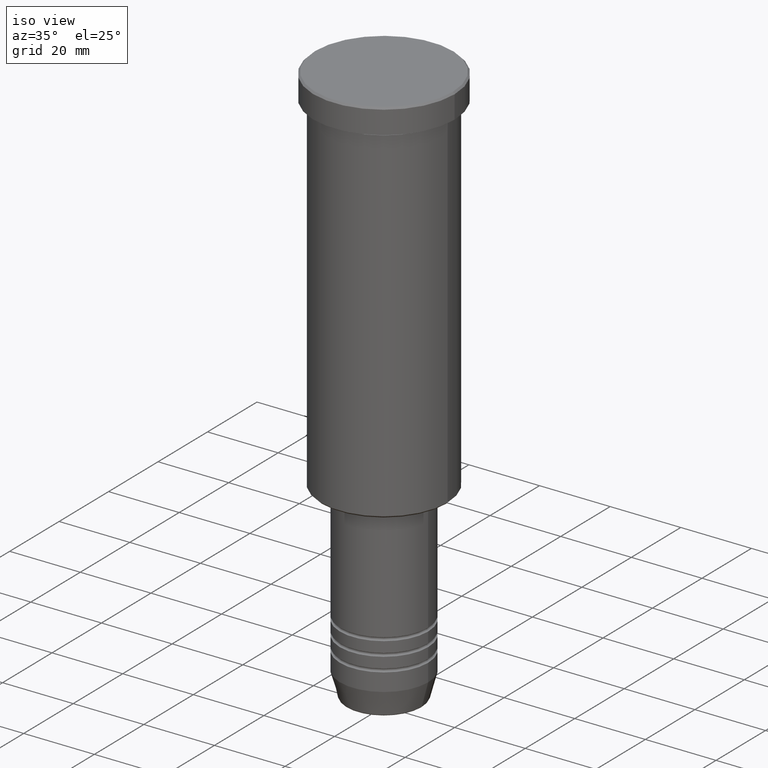
[diagram: clean part render]
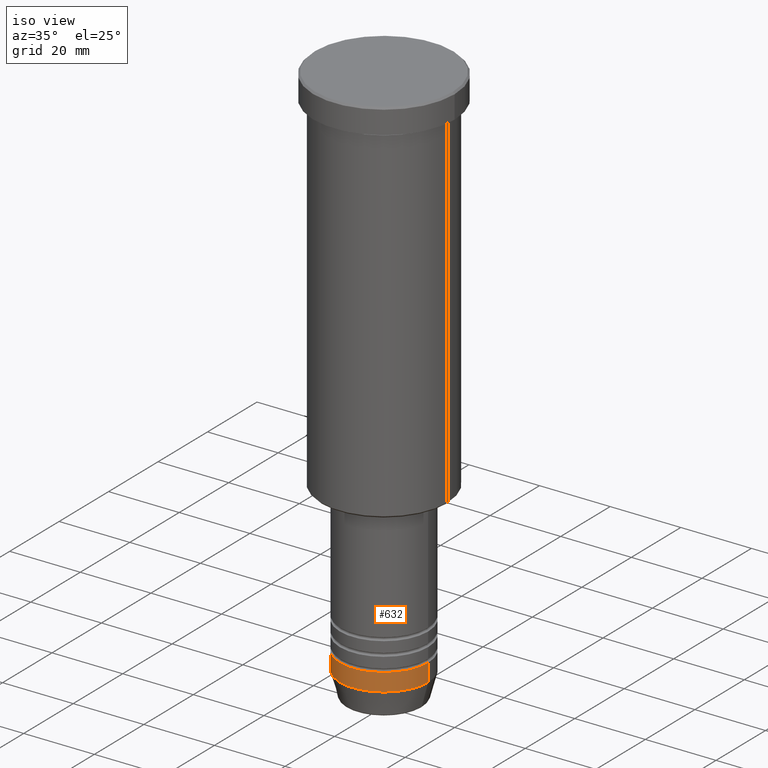
[diagram: same view with one face highlighted and labeled with its STEP entity id]
A machine part, iso view. The second image highlights one B-rep face of the part: STEP entity #632.
In plain terms, the highlighted cylindrical surface (partial cylindrical patch) has radius 12.5 mm, axis along (-0, -0, 1).
Its self-contained STEP definition (entity closure, byte-faithful):
#60 = CARTESIAN_POINT ( 'NONE',  ( -12.50000000000000000, 1.530808498934191521E-15, -148.0000000000000000 ) ) ;
#197 = DIRECTION ( 'NONE',  ( 1.000000000000000000, 0.000000000000000000, 0.000000000000000000 ) ) ;
#212 = VECTOR ( 'NONE', #970, 1000.000000000000000 ) ;
#218 = LINE ( 'NONE', #1131, #357 ) ;
#223 = CYLINDRICAL_SURFACE ( 'NONE', #227, 12.50000000000000000 ) ;
#227 = AXIS2_PLACEMENT_3D ( 'NONE', #944, #492, #197 ) ;
#235 = CARTESIAN_POINT ( 'NONE',  ( 0.000000000000000000, 0.000000000000000000, -148.0000000000000000 ) ) ;
#281 = EDGE_LOOP ( 'NONE', ( #564, #548, #539, #438 ) ) ;
#282 = CIRCLE ( 'NONE', #871, 12.50000000000000000 ) ;
#285 = CARTESIAN_POINT ( 'NONE',  ( -12.50000000000000000, 1.530808498934191521E-15, -153.0000000000000000 ) ) ;
#292 = EDGE_CURVE ( 'NONE', #647, #1110, #282, .T. ) ;
#357 = VECTOR ( 'NONE', #674, 1000.000000000000000 ) ;
#420 = DIRECTION ( 'NONE',  ( 1.000000000000000000, 0.000000000000000000, 0.000000000000000000 ) ) ;
#438 = ORIENTED_EDGE ( 'NONE', *, *, #1054, .F. ) ;
#492 = DIRECTION ( 'NONE',  ( -0.000000000000000000, -0.000000000000000000, 1.000000000000000000 ) ) ;
#494 = CARTESIAN_POINT ( 'NONE',  ( 12.50000000000000000, 0.000000000000000000, -148.0000000000000000 ) ) ;
#534 = VERTEX_POINT ( 'NONE', #60 ) ;
#539 = ORIENTED_EDGE ( 'NONE', *, *, #763, .T. ) ;
#548 = ORIENTED_EDGE ( 'NONE', *, *, #292, .T. ) ;
#564 = ORIENTED_EDGE ( 'NONE', *, *, #892, .F. ) ;
#632 = ADVANCED_FACE ( 'NONE', ( #839 ), #223, .T. ) ;
#647 = VERTEX_POINT ( 'NONE', #285 ) ;
#674 = DIRECTION ( 'NONE',  ( -0.000000000000000000, -0.000000000000000000, 1.000000000000000000 ) ) ;
#689 = DIRECTION ( 'NONE',  ( -0.000000000000000000, -0.000000000000000000, 1.000000000000000000 ) ) ;
#693 = CARTESIAN_POINT ( 'NONE',  ( 0.000000000000000000, 0.000000000000000000, -153.0000000000000000 ) ) ;
#763 = EDGE_CURVE ( 'NONE', #1110, #976, #218, .T. ) ;
#801 = DIRECTION ( 'NONE',  ( -0.000000000000000000, -0.000000000000000000, 1.000000000000000000 ) ) ;
#827 = LINE ( 'NONE', #963, #212 ) ;
#839 = FACE_OUTER_BOUND ( 'NONE', #281, .T. ) ;
#871 = AXIS2_PLACEMENT_3D ( 'NONE', #693, #801, #1174 ) ;
#892 = EDGE_CURVE ( 'NONE', #647, #534, #827, .T. ) ;
#939 = CARTESIAN_POINT ( 'NONE',  ( 12.50000000000000000, 0.000000000000000000, -153.0000000000000000 ) ) ;
#944 = CARTESIAN_POINT ( 'NONE',  ( 0.000000000000000000, 0.000000000000000000, 0.000000000000000000 ) ) ;
#963 = CARTESIAN_POINT ( 'NONE',  ( -12.50000000000000000, 1.530808498934191521E-15, 0.000000000000000000 ) ) ;
#970 = DIRECTION ( 'NONE',  ( -0.000000000000000000, -0.000000000000000000, 1.000000000000000000 ) ) ;
#976 = VERTEX_POINT ( 'NONE', #494 ) ;
#1054 = EDGE_CURVE ( 'NONE', #534, #976, #1170, .T. ) ;
#1110 = VERTEX_POINT ( 'NONE', #939 ) ;
#1131 = CARTESIAN_POINT ( 'NONE',  ( 12.50000000000000000, 0.000000000000000000, 0.000000000000000000 ) ) ;
#1147 = AXIS2_PLACEMENT_3D ( 'NONE', #235, #689, #420 ) ;
#1170 = CIRCLE ( 'NONE', #1147, 12.50000000000000000 ) ;
#1174 = DIRECTION ( 'NONE',  ( 1.000000000000000000, 0.000000000000000000, 0.000000000000000000 ) ) ;